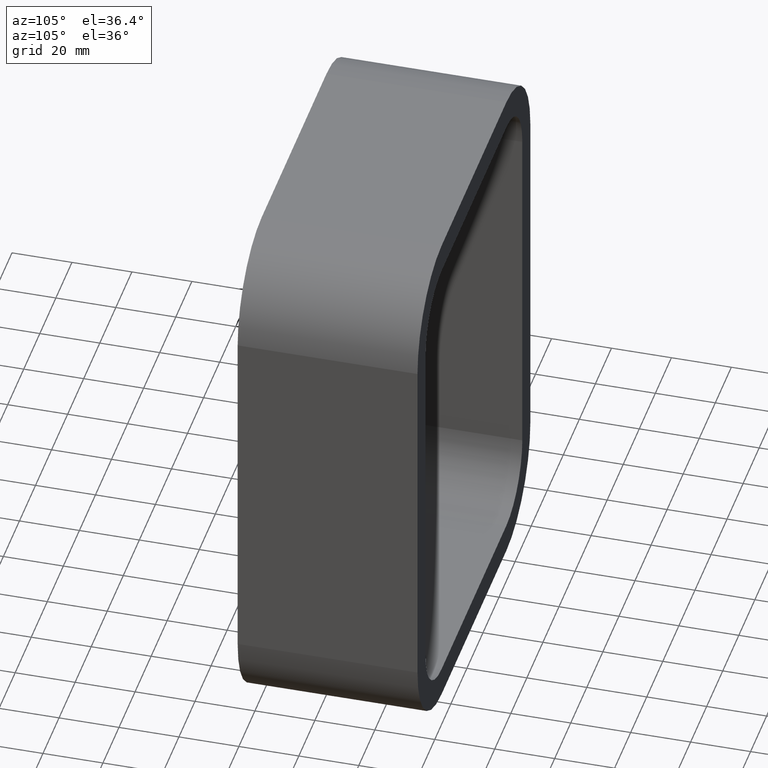
[diagram: clean part render]
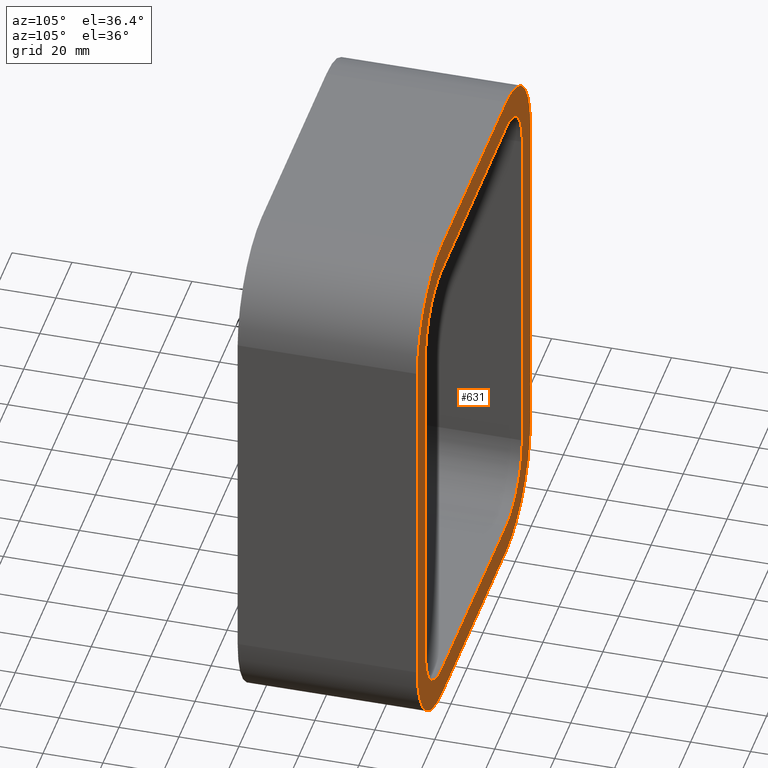
[diagram: same view with one face highlighted and labeled with its STEP entity id]
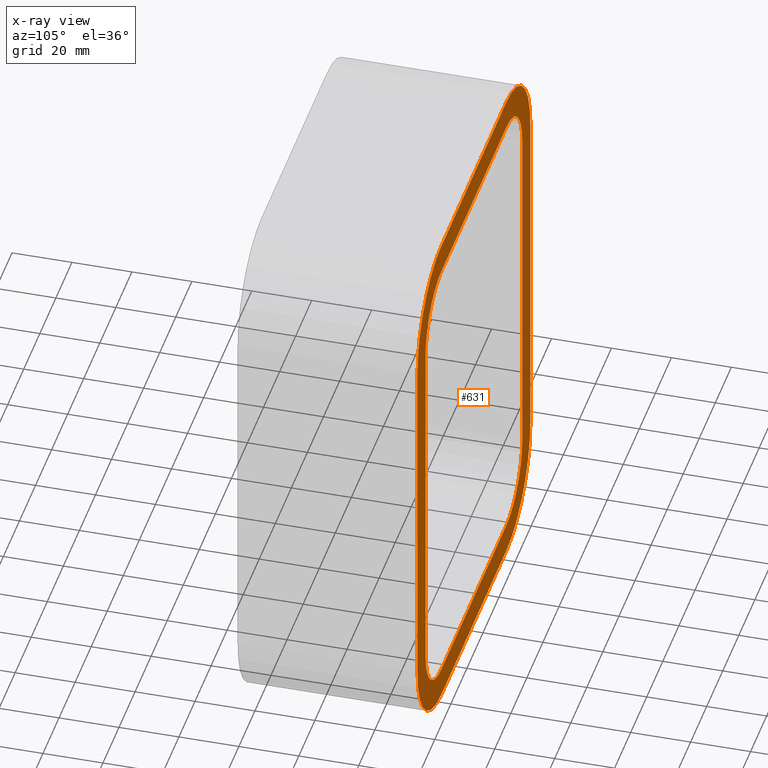
[diagram: x-ray of the same camera — body ghosted, the highlighted face saturated]
A machine part, auxiliary view. The second image highlights one B-rep face of the part: STEP entity #631.
The next image is the same camera in x-ray: the body ghosted, the highlighted face saturated — about 0% of this face is hidden behind the body in this view.
In plain terms, the highlighted planar face has unit normal (0, 1, 0).
Its self-contained STEP definition (entity closure, byte-faithful):
#73=CARTESIAN_POINT('',(40.249999999999993,57.0,-89.750000000000014));
#74=VERTEX_POINT('',#73);
#75=CARTESIAN_POINT('',(70.25,57.0,-59.750000000000014));
#76=VERTEX_POINT('',#75);
#77=CARTESIAN_POINT('',(40.249999999999993,57.0,-59.750000000000014));
#78=DIRECTION('',(0.0,-1.0,0.0));
#79=DIRECTION('',(0.707106781186547,0.0,-0.707106781186547));
#80=AXIS2_PLACEMENT_3D('',#77,#78,#79);
#81=CIRCLE('',#80,30.0);
#82=EDGE_CURVE('',#74,#76,#81,.T.);
#252=CARTESIAN_POINT('',(70.25,57.0,59.750000000000014));
#253=VERTEX_POINT('',#252);
#254=CARTESIAN_POINT('',(70.25,57.0,59.750000000000014));
#255=DIRECTION('',(0.0,0.0,-1.0));
#256=VECTOR('',#255,119.50000000000003);
#257=LINE('',#254,#256);
#258=EDGE_CURVE('',#253,#76,#257,.T.);
#277=CARTESIAN_POINT('',(40.249999999999993,57.0,89.750000000000014));
#278=VERTEX_POINT('',#277);
#279=CARTESIAN_POINT('',(40.249999999999993,57.0,59.750000000000014));
#280=DIRECTION('',(0.0,-1.0,0.0));
#281=DIRECTION('',(0.707106781186547,0.0,0.707106781186547));
#282=AXIS2_PLACEMENT_3D('',#279,#280,#281);
#283=CIRCLE('',#282,30.0);
#284=EDGE_CURVE('',#253,#278,#283,.T.);
#300=CARTESIAN_POINT('',(-70.250000000000014,57.0,-59.750000000000014));
#301=VERTEX_POINT('',#300);
#302=CARTESIAN_POINT('',(-40.250000000000014,57.0,-89.750000000000014));
#303=VERTEX_POINT('',#302);
#304=CARTESIAN_POINT('',(-40.250000000000014,57.0,-59.750000000000014));
#305=DIRECTION('',(0.0,-1.0,0.0));
#306=DIRECTION('',(-0.707106781186547,0.0,-0.707106781186547));
#307=AXIS2_PLACEMENT_3D('',#304,#305,#306);
#308=CIRCLE('',#307,30.0);
#309=EDGE_CURVE('',#301,#303,#308,.T.);
#334=CARTESIAN_POINT('',(-70.250000000000014,57.0,59.750000000000014));
#335=VERTEX_POINT('',#334);
#342=CARTESIAN_POINT('',(-70.250000000000014,57.0,-59.750000000000014));
#343=DIRECTION('',(0.0,0.0,1.0));
#344=VECTOR('',#343,119.50000000000003);
#345=LINE('',#342,#344);
#346=EDGE_CURVE('',#301,#335,#345,.T.);
#356=CARTESIAN_POINT('',(-40.250000000000014,57.0,89.750000000000014));
#357=VERTEX_POINT('',#356);
#358=CARTESIAN_POINT('',(-40.250000000000014,57.0,59.750000000000014));
#359=DIRECTION('',(0.0,-1.0,0.0));
#360=DIRECTION('',(-0.707106781186547,0.0,0.707106781186547));
#361=AXIS2_PLACEMENT_3D('',#358,#359,#360);
#362=CIRCLE('',#361,30.0);
#363=EDGE_CURVE('',#357,#335,#362,.T.);
#382=CARTESIAN_POINT('',(-40.250000000000014,57.0,89.750000000000014));
#383=DIRECTION('',(1.0,0.0,0.0));
#384=VECTOR('',#383,80.5);
#385=LINE('',#382,#384);
#386=EDGE_CURVE('',#357,#278,#385,.T.);
#399=CARTESIAN_POINT('',(-60.250000000000014,57.0,59.750000000000021));
#400=VERTEX_POINT('',#399);
#407=CARTESIAN_POINT('',(-40.250000000000014,57.0,79.750000000000014));
#408=VERTEX_POINT('',#407);
#409=CARTESIAN_POINT('',(-40.250000000000014,57.0,59.750000000000014));
#410=DIRECTION('',(0.0,1.0,0.0));
#411=DIRECTION('',(-0.707106781186547,0.0,0.707106781186547));
#412=AXIS2_PLACEMENT_3D('',#409,#410,#411);
#413=CIRCLE('',#412,19.999999999999996);
#414=EDGE_CURVE('',#400,#408,#413,.T.);
#432=CARTESIAN_POINT('',(-60.250000000000014,57.0,-59.75));
#433=VERTEX_POINT('',#432);
#440=CARTESIAN_POINT('',(-60.250000000000014,57.0,59.750000000000028));
#441=DIRECTION('',(0.0,0.0,-1.0));
#442=VECTOR('',#441,119.50000000000003);
#443=LINE('',#440,#442);
#444=EDGE_CURVE('',#400,#433,#443,.T.);
#455=CARTESIAN_POINT('',(40.25,57.0,79.750000000000014));
#456=VERTEX_POINT('',#455);
#463=CARTESIAN_POINT('',(60.25,57.0,59.750000000000014));
#464=VERTEX_POINT('',#463);
#465=CARTESIAN_POINT('',(40.25,57.0,59.750000000000014));
#466=DIRECTION('',(0.0,1.0,0.0));
#467=DIRECTION('',(0.707106781186547,0.0,0.707106781186547));
#468=AXIS2_PLACEMENT_3D('',#465,#466,#467);
#469=CIRCLE('',#468,19.999999999999996);
#470=EDGE_CURVE('',#456,#464,#469,.T.);
#487=CARTESIAN_POINT('',(40.25,57.0,79.750000000000014));
#488=DIRECTION('',(-1.0,0.0,0.0));
#489=VECTOR('',#488,80.500000000000014);
#490=LINE('',#487,#489);
#491=EDGE_CURVE('',#456,#408,#490,.T.);
#504=CARTESIAN_POINT('',(-40.25,57.0,-79.75));
#505=VERTEX_POINT('',#504);
#512=CARTESIAN_POINT('',(-40.25,57.0,-59.75));
#513=DIRECTION('',(0.0,1.0,0.0));
#514=DIRECTION('',(-0.707106781186547,0.0,-0.707106781186547));
#515=AXIS2_PLACEMENT_3D('',#512,#513,#514);
#516=CIRCLE('',#515,19.999999999999996);
#517=EDGE_CURVE('',#505,#433,#516,.T.);
#530=CARTESIAN_POINT('',(40.25,57.0,-79.75));
#531=VERTEX_POINT('',#530);
#538=CARTESIAN_POINT('',(-40.25,57.0,-79.75));
#539=DIRECTION('',(1.0,0.0,0.0));
#540=VECTOR('',#539,80.5);
#541=LINE('',#538,#540);
#542=EDGE_CURVE('',#505,#531,#541,.T.);
#552=CARTESIAN_POINT('',(60.25,57.0,-59.75));
#553=VERTEX_POINT('',#552);
#554=CARTESIAN_POINT('',(40.25,57.0,-59.75));
#555=DIRECTION('',(0.0,1.0,0.0));
#556=DIRECTION('',(0.707106781186547,0.0,-0.707106781186547));
#557=AXIS2_PLACEMENT_3D('',#554,#555,#556);
#558=CIRCLE('',#557,19.999999999999996);
#559=EDGE_CURVE('',#553,#531,#558,.T.);
#578=CARTESIAN_POINT('',(60.25,57.0,-59.749999999999993));
#579=DIRECTION('',(0.0,0.0,1.0));
#580=VECTOR('',#579,119.5);
#581=LINE('',#578,#580);
#582=EDGE_CURVE('',#553,#464,#581,.T.);
#597=CARTESIAN_POINT('',(40.25,57.0,-89.750000000000014));
#598=DIRECTION('',(-1.0,0.0,0.0));
#599=VECTOR('',#598,80.5);
#600=LINE('',#597,#599);
#601=EDGE_CURVE('',#74,#303,#600,.T.);
#606=CARTESIAN_POINT('',(-8.611167E-015,57.0,0.0));
#607=DIRECTION('',(0.0,1.0,0.0));
#608=DIRECTION('',(0.0,0.0,1.0));
#609=AXIS2_PLACEMENT_3D('',#606,#607,#608);
#610=PLANE('',#609);
#611=ORIENTED_EDGE('',*,*,#82,.F.);
#612=ORIENTED_EDGE('',*,*,#601,.T.);
#613=ORIENTED_EDGE('',*,*,#309,.F.);
#614=ORIENTED_EDGE('',*,*,#346,.T.);
#615=ORIENTED_EDGE('',*,*,#363,.F.);
#616=ORIENTED_EDGE('',*,*,#386,.T.);
#617=ORIENTED_EDGE('',*,*,#284,.F.);
#618=ORIENTED_EDGE('',*,*,#258,.T.);
#619=EDGE_LOOP('',(#611,#612,#613,#614,#615,#616,#617,#618));
#620=FACE_OUTER_BOUND('',#619,.T.);
#621=ORIENTED_EDGE('',*,*,#582,.T.);
#622=ORIENTED_EDGE('',*,*,#470,.F.);
#623=ORIENTED_EDGE('',*,*,#491,.T.);
#624=ORIENTED_EDGE('',*,*,#414,.F.);
#625=ORIENTED_EDGE('',*,*,#444,.T.);
#626=ORIENTED_EDGE('',*,*,#517,.F.);
#627=ORIENTED_EDGE('',*,*,#542,.T.);
#628=ORIENTED_EDGE('',*,*,#559,.F.);
#629=EDGE_LOOP('',(#621,#622,#623,#624,#625,#626,#627,#628));
#630=FACE_BOUND('',#629,.T.);
#631=ADVANCED_FACE('',(#620,#630),#610,.T.);